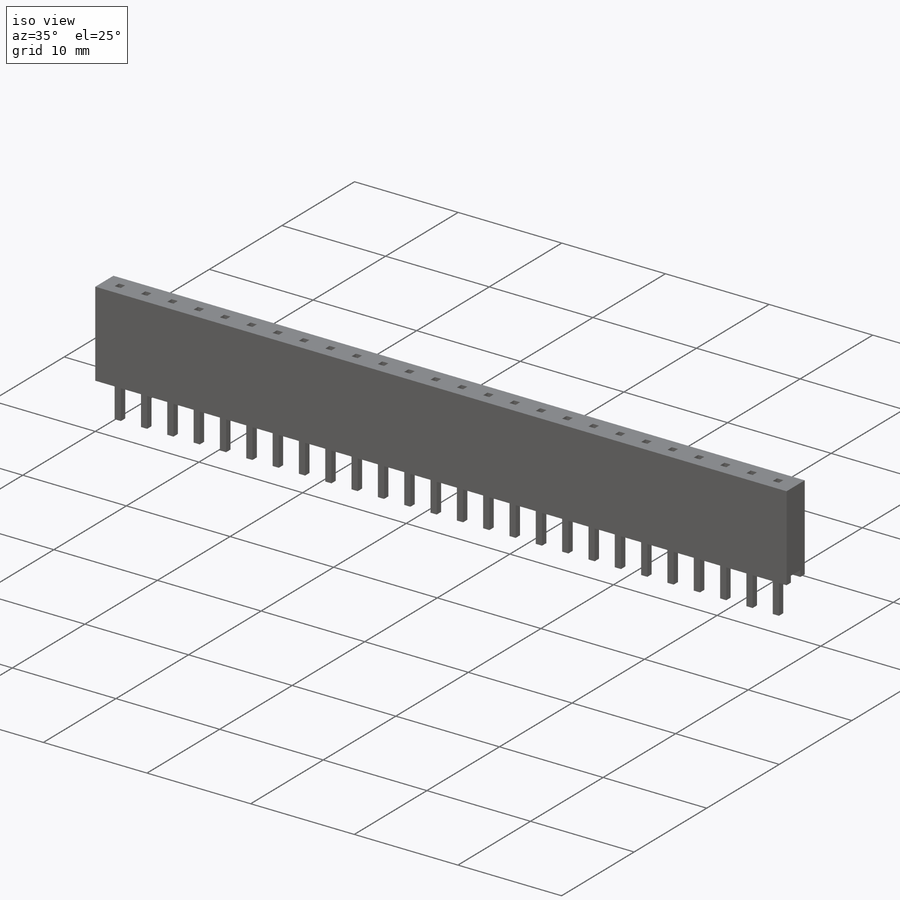
[diagram: iso view]
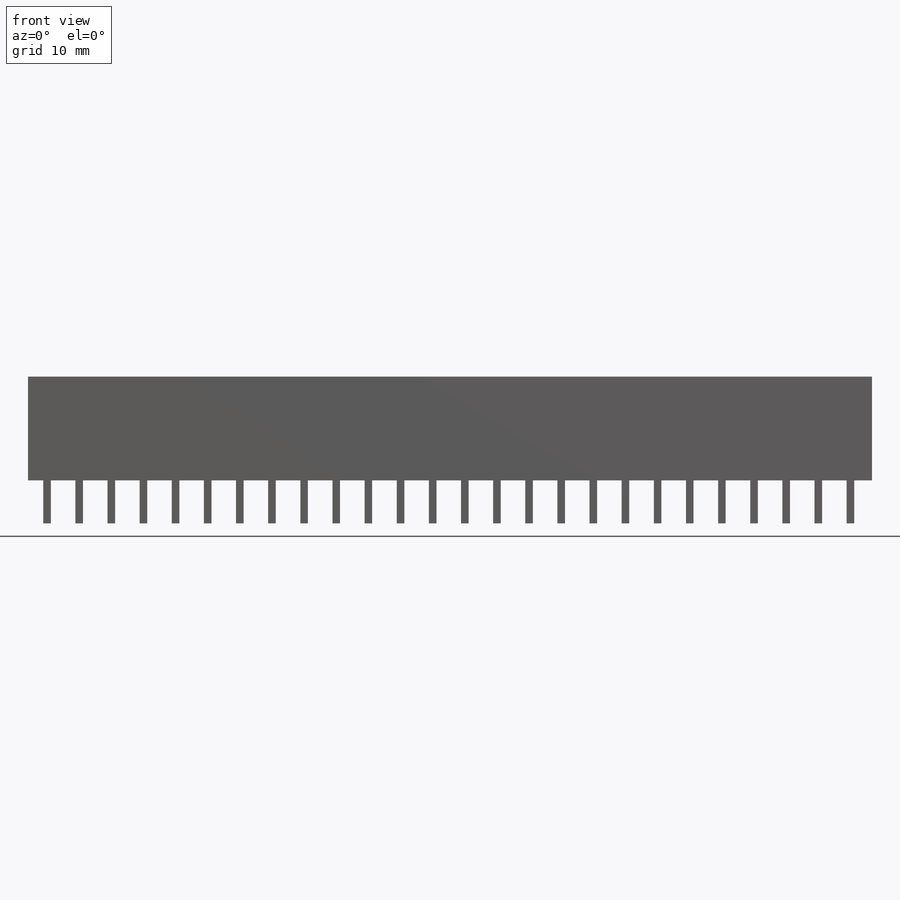
[diagram: front view]
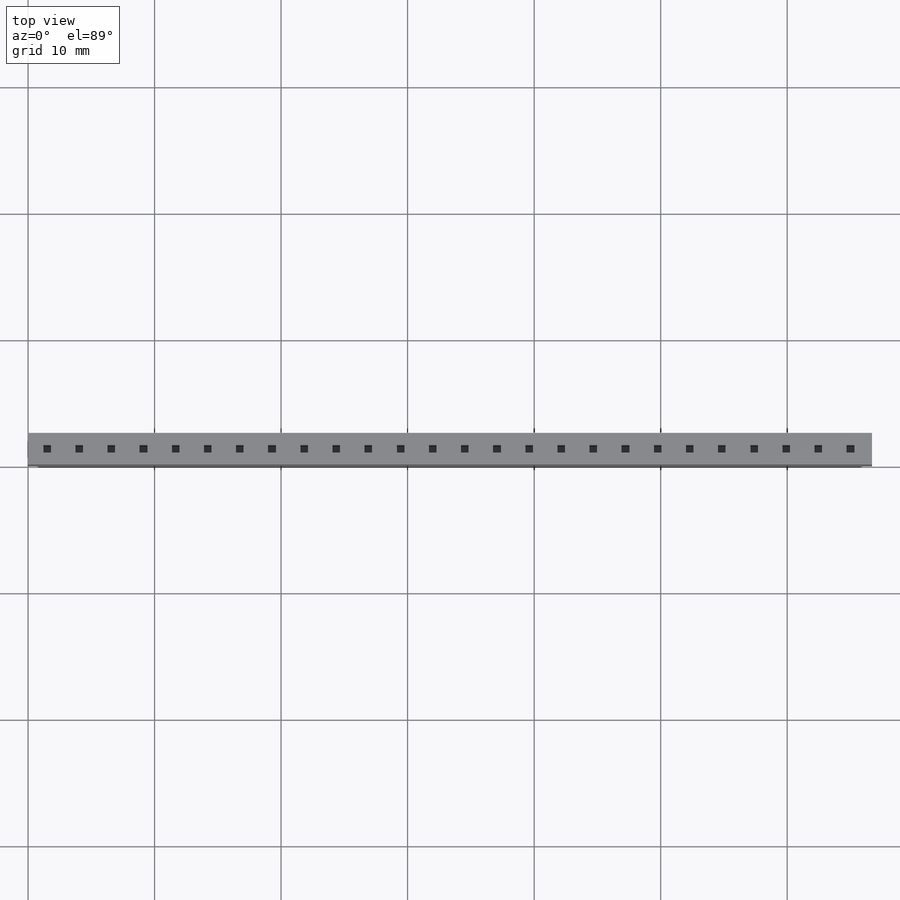
[diagram: top view]
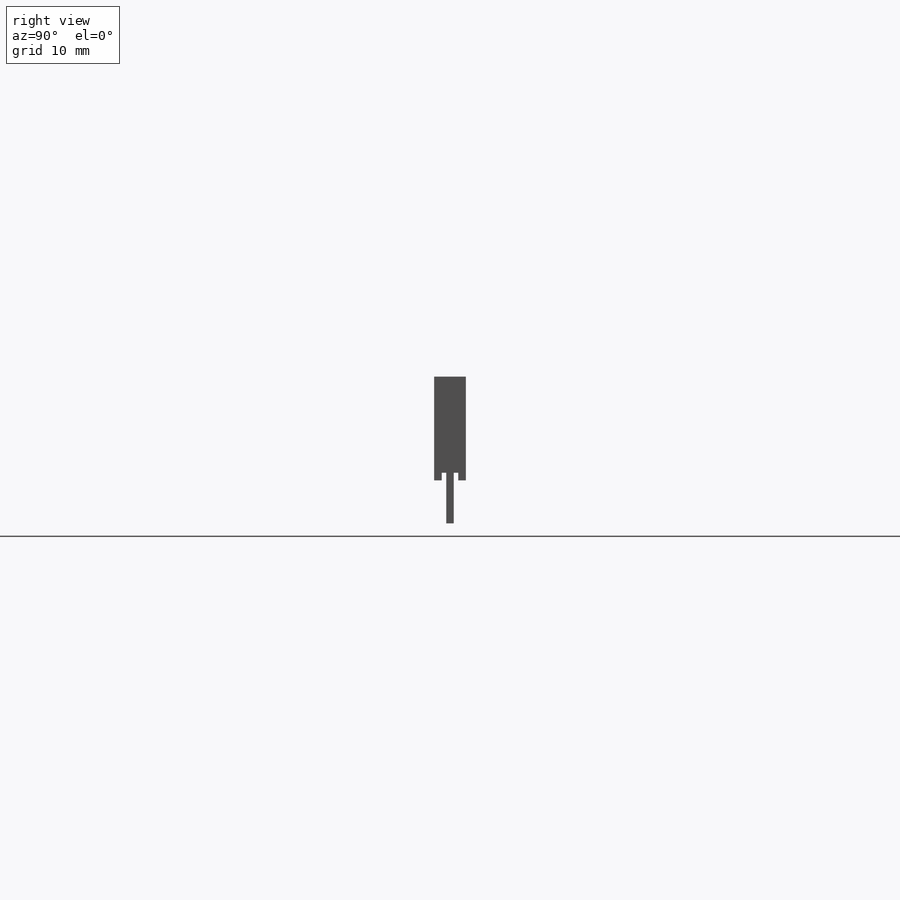
[diagram: right view]
SOLIDWORKS PART (.sldprt)
format: sldprt  version: not decoded by parser v0  size: 597,504 bytes
history: native  units: mm
features: sketch x5, material x1, extrude x1, cut_extrude x1, hole x1, pattern_linear x1 (+13 scaffold rows collapsed)
feature tree (23):
  scaffold x13  (default folders/planes/origin — collapsed)
  material  "Material <not specified>"
  sketch  "Sketch1"  dims[D1=66.7004mm D2=2.5mm]
  extrude  "Body"  Depth=8.2mm
  sketch  "Sketch2"  dims[D1=0.6mm D2=0.6mm]
  cut_extrude  "Base Cut"  [1 undecoded]
  sketch  "Sketch3"  dims[c1.D1=0.8mm c1.D2=0.8mm c1.D3=0.6mm c1.D4=0.6mm c1.D5=1.17mm c2.D1=0.6mm c2.D2=0.6mm c2.D3=1.5mm]
  hole  "Pin Hole"  [1 undecoded]
  pattern_linear  "LPattern1"  Count1=26 Count2=1 Spacing1=2.54mm Spacing2=10mm
  sketch  "Sketch5"  dims[c1.D1=2.54mm c2.D1=4.0mm]
  sketch  "Sketch7"  dims[D1=1.0mm]
decode coverage: 7 of 9 modeling features carry decoded parameters
note: 2 parameter values undecoded
note: suppression state not decoded; provenance and decode notes live in map.json
